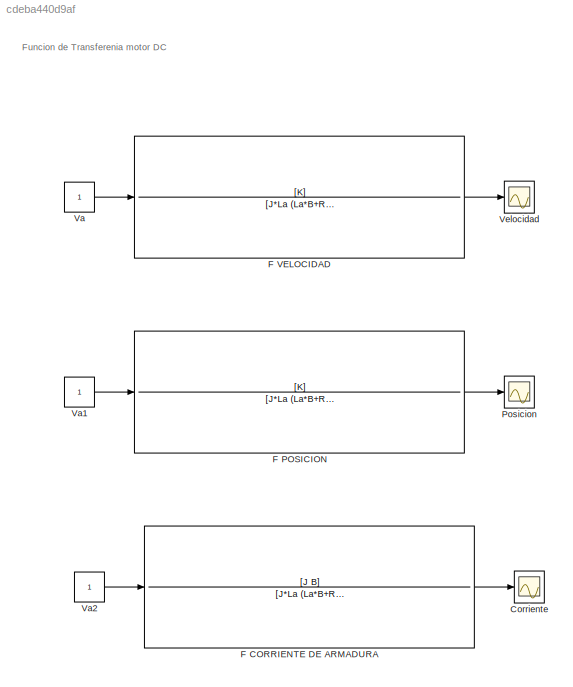
MODEL slx_cdeba440d9af
KIND model
CONFIG AbsTol = auto
CONFIG EnableMultiTasking = off
CONFIG FixedStep = auto
CONFIG MaxStep = auto
CONFIG MinStep = auto
CONFIG RelTol = 1e-3
CONFIG SampleTimeConstraint = Unconstrained
CONFIG SolverName = VariableStepAuto
CONFIG StartTime = 0.0
CONFIG StopTime = 2
BLOCK [Scope] Corriente
  Floating = off
  NumInputPorts = 1
  Ports = [1]
  ScopeSpecificationString = Simulink.scopes.TimeScopeBlockCfg('CurrentConfiguration', extmgr.ConfigurationSet(extmgr.Configuration('Core','General UI',true),extmgr.Configuration('Core','Source UI',true),extmgr.Configuration('Sources','WiredSimulink',true,'DataLoggingVariableName','ScopeData2'),extmgr.Configuration('Visuals','Time Domain',true,'SerializedDisplays',{struct('MinYLimReal','-0.01488','MaxYLimReal','0.1339','YLabe...<+1411ch>
BLOCK [TransferFcn] F CORRIENTE DE ARMADURA
  Denominator = [J*La (La*B+Ra*J) (Ra*B+K^2)]
  Numerator = [J B]
BLOCK [TransferFcn] F POSICION
  Denominator = [J*La (La*B+Ra*J) (Ra*B+K^2) 0]
  Numerator = [K]
BLOCK [TransferFcn] F VELOCIDAD
  Denominator = [J*La (La*B+Ra*J) Ra*B+K^2]
  Numerator = [K]
BLOCK [Scope] Posicion
  Floating = off
  NumInputPorts = 1
  Ports = [1]
  ScopeSpecificationString = Simulink.scopes.TimeScopeBlockCfg('CurrentConfiguration', extmgr.ConfigurationSet(extmgr.Configuration('Core','General UI',true),extmgr.Configuration('Core','Source UI',true),extmgr.Configuration('Sources','WiredSimulink',true,'DataLoggingVariableName','ScopeData1'),extmgr.Configuration('Visuals','Time Domain',true,'SerializedDisplays',{struct('MinYLimReal','-2.68123','MaxYLimReal','24.13108','YLa...<+1406ch>
BLOCK [Constant] Va
BLOCK [Constant] Va1
BLOCK [Constant] Va2
BLOCK [Scope] Velocidad
  Floating = off
  NumInputPorts = 1
  Ports = [1]
  ScopeSpecificationString = Simulink.scopes.TimeScopeBlockCfg('CurrentConfiguration', extmgr.ConfigurationSet(extmgr.Configuration('Core','General UI',true),extmgr.Configuration('Core','Source UI',true),extmgr.Configuration('Sources','WiredSimulink',true),extmgr.Configuration('Visuals','Time Domain',true,'SerializedDisplays',{struct('MinYLimReal','-1.40041','MaxYLimReal','12.60369','YLabelReal','','MinYLimMag','0.00000','Max...<+1368ch>
ANNOTATION (root): Funcion de Transferenia motor DC
LINE F CORRIENTE DE ARMADURA:1 -> Corriente:1
LINE F POSICION:1 -> Posicion:1
LINE F VELOCIDAD:1 -> Velocidad:1
LINE Va1:1 -> F POSICION:1
LINE Va2:1 -> F CORRIENTE DE ARMADURA:1
LINE Va:1 -> F VELOCIDAD:1
